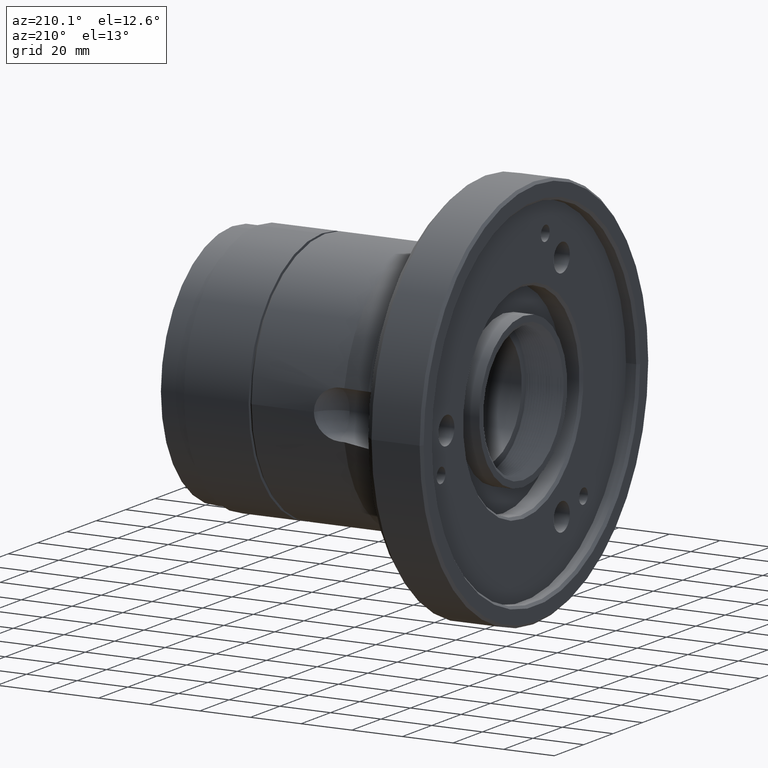
[diagram: clean part render]
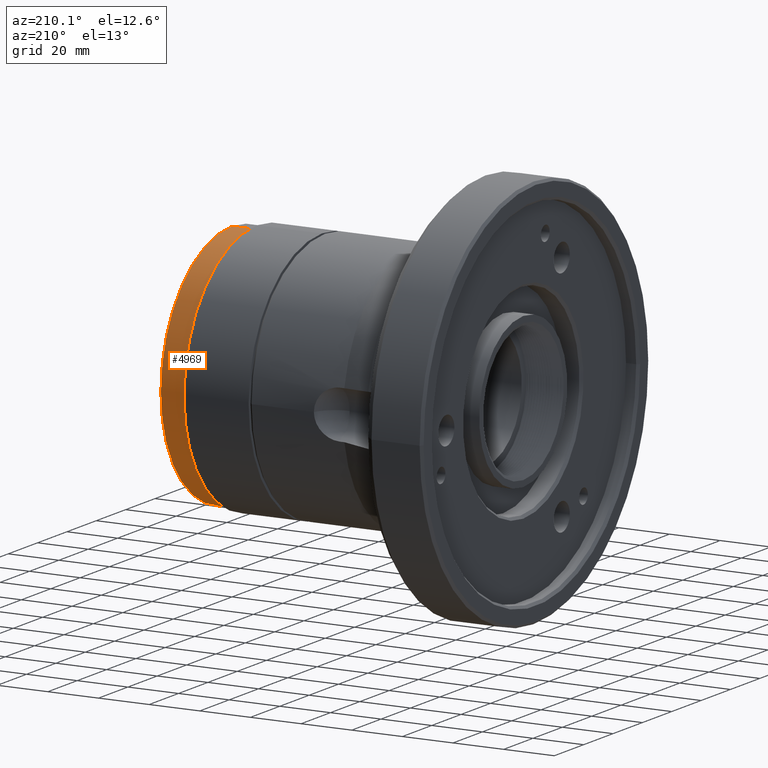
[diagram: same view with one face highlighted and labeled with its STEP entity id]
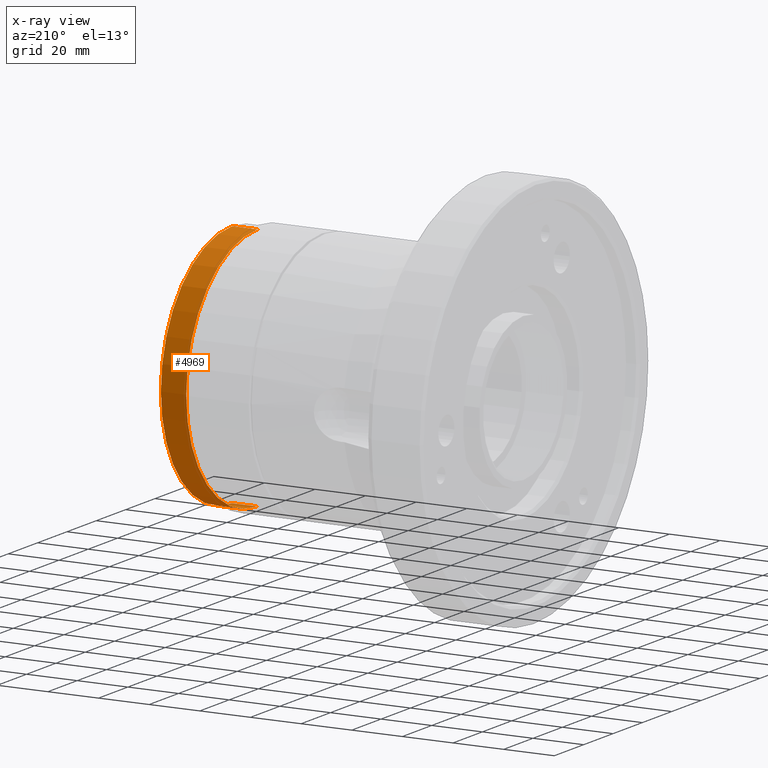
[diagram: x-ray of the same camera — body ghosted, the highlighted face saturated]
A machine part, auxiliary view. The second image highlights one B-rep face of the part: STEP entity #4969.
The next image is the same camera in x-ray: the body ghosted, the highlighted face saturated — about 1% of this face is hidden behind the body in this view.
In plain terms, the highlighted cylindrical surface (partial cylindrical patch) has radius 48.5 mm, axis along (-1, -0, -0).
Its self-contained STEP definition (entity closure, byte-faithful):
#29 = VERTEX_POINT ( 'NONE', #3019 ) ;
#48 = VERTEX_POINT ( 'NONE', #3035 ) ;
#49 = VERTEX_POINT ( 'NONE', #3036 ) ;
#76 = VERTEX_POINT ( 'NONE', #3048 ) ;
#402 = AXIS2_PLACEMENT_3D ( 'NONE', #3477, #3478, #3479 ) ;
#445 = VECTOR ( 'NONE', #3475, 1.000000000000000000 ) ;
#572 = CIRCLE ( 'NONE', #402, 0.04850000000000000100 ) ;
#617 = VECTOR ( 'NONE', #3481, 1.000000000000000000 ) ;
#618 = CIRCLE ( 'NONE', #666, 0.04850000000000000100 ) ;
#666 = AXIS2_PLACEMENT_3D ( 'NONE', #3472, #3473, #3474 ) ;
#701 = EDGE_LOOP ( 'NONE', ( #5316, #5314, #5313, #5309 ) ) ;
#3019 = CARTESIAN_POINT ( 'NONE',  ( 0.03549999999999999700, 5.939536975864663000E-018, -0.04850000000000000100 ) ) ;
#3035 = CARTESIAN_POINT ( 'NONE',  ( 0.02549999999999999500, 5.939536975864663000E-018, -0.04850000000000000100 ) ) ;
#3036 = CARTESIAN_POINT ( 'NONE',  ( 0.02549999999999999500, 0.0000000000000000000, 0.04850000000000000100 ) ) ;
#3048 = CARTESIAN_POINT ( 'NONE',  ( 0.03549999999999999700, 0.0000000000000000000, 0.04850000000000000100 ) ) ;
#3466 = CARTESIAN_POINT ( 'NONE',  ( 0.0000000000000000000, 5.939536975864663000E-018, -0.04850000000000000100 ) ) ;
#3470 = CARTESIAN_POINT ( 'NONE',  ( 0.0000000000000000000, 0.0000000000000000000, 0.04850000000000000100 ) ) ;
#3471 = LINE ( 'NONE', #3466, #445 ) ;
#3472 = CARTESIAN_POINT ( 'NONE',  ( 0.03549999999999999700, 0.0000000000000000000, 0.0000000000000000000 ) ) ;
#3473 = DIRECTION ( 'NONE',  ( -1.000000000000000000, -0.0000000000000000000, -0.0000000000000000000 ) ) ;
#3474 = DIRECTION ( 'NONE',  ( 0.0000000000000000000, 0.0000000000000000000, 1.000000000000000000 ) ) ;
#3475 = DIRECTION ( 'NONE',  ( -1.000000000000000000, -0.0000000000000000000, -0.0000000000000000000 ) ) ;
#3476 = LINE ( 'NONE', #3470, #617 ) ;
#3477 = CARTESIAN_POINT ( 'NONE',  ( 0.02549999999999999500, 0.0000000000000000000, 0.0000000000000000000 ) ) ;
#3478 = DIRECTION ( 'NONE',  ( -1.000000000000000000, -0.0000000000000000000, -0.0000000000000000000 ) ) ;
#3479 = DIRECTION ( 'NONE',  ( 0.0000000000000000000, 0.0000000000000000000, 1.000000000000000000 ) ) ;
#3481 = DIRECTION ( 'NONE',  ( -1.000000000000000000, -0.0000000000000000000, -0.0000000000000000000 ) ) ;
#3502 = EDGE_CURVE ( 'NONE', #76, #29, #618, .T. ) ;
#3503 = EDGE_CURVE ( 'NONE', #29, #48, #3471, .T. ) ;
#3504 = EDGE_CURVE ( 'NONE', #49, #48, #572, .T. ) ;
#3505 = EDGE_CURVE ( 'NONE', #76, #49, #3476, .T. ) ;
#4403 = AXIS2_PLACEMENT_3D ( 'NONE', #6264, #6252, #6267 ) ;
#4969 = ADVANCED_FACE ( 'NONE', ( #6263 ), #6266, .T. ) ;
#5309 = ORIENTED_EDGE ( 'NONE', *, *, #3505, .F. ) ;
#5313 = ORIENTED_EDGE ( 'NONE', *, *, #3504, .F. ) ;
#5314 = ORIENTED_EDGE ( 'NONE', *, *, #3503, .T. ) ;
#5316 = ORIENTED_EDGE ( 'NONE', *, *, #3502, .T. ) ;
#6252 = DIRECTION ( 'NONE',  ( -1.000000000000000000, -0.0000000000000000000, -0.0000000000000000000 ) ) ;
#6263 = FACE_OUTER_BOUND ( 'NONE', #701, .T. ) ;
#6264 = CARTESIAN_POINT ( 'NONE',  ( 0.0000000000000000000, 0.0000000000000000000, 0.0000000000000000000 ) ) ;
#6266 = CYLINDRICAL_SURFACE ( 'NONE', #4403, 0.04850000000000000100 ) ;
#6267 = DIRECTION ( 'NONE',  ( 0.0000000000000000000, 0.0000000000000000000, 1.000000000000000000 ) ) ;